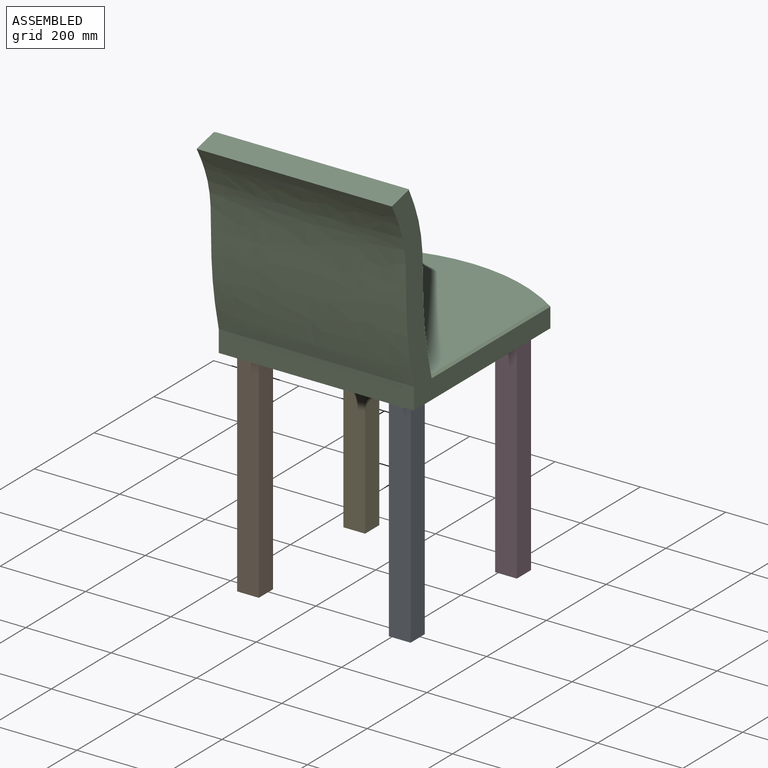
[diagram: assembled view]
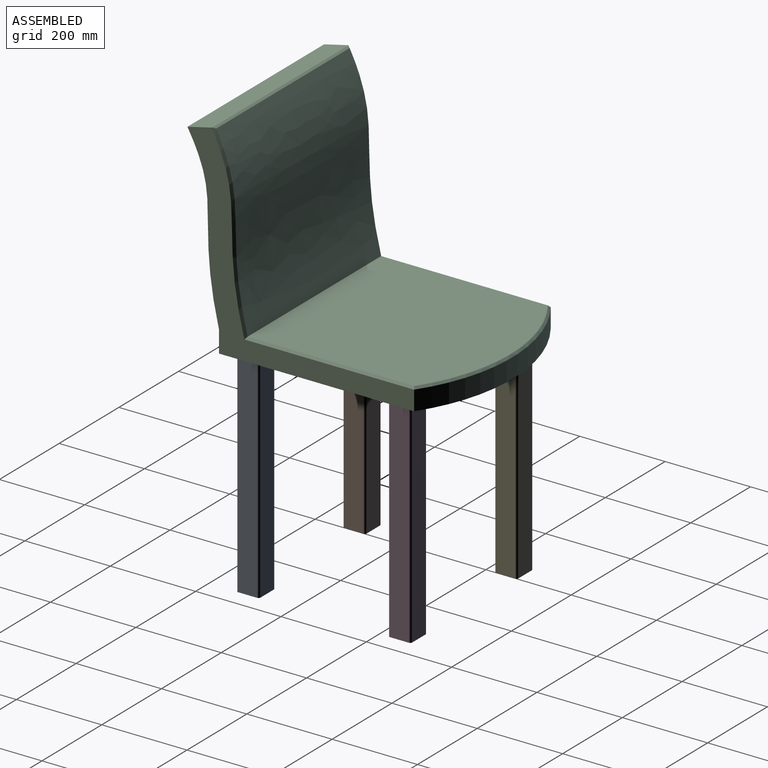
[diagram: assembled view, second angle]
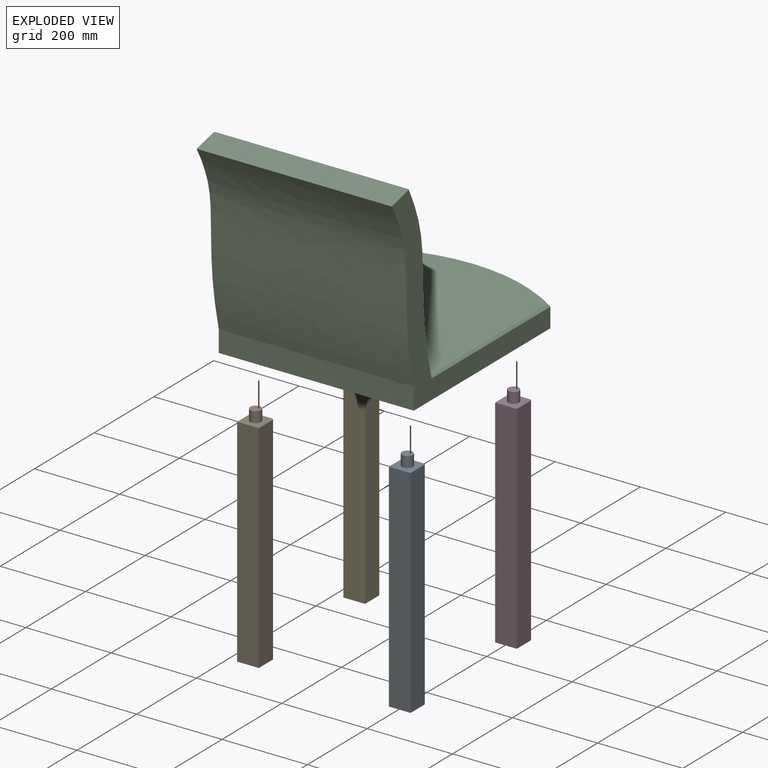
[diagram: exploded view]
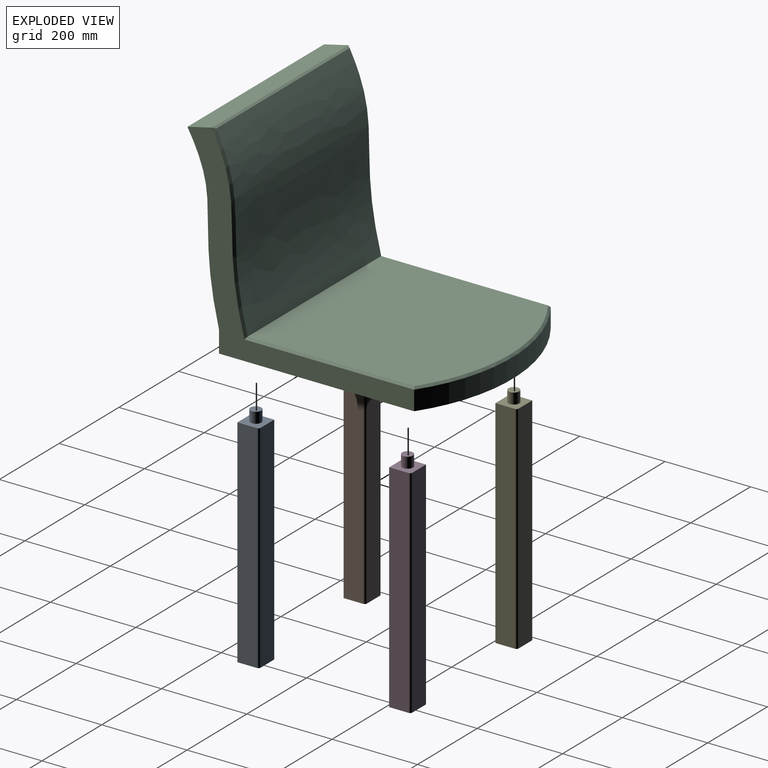
[diagram: exploded view, second angle]
ASSEMBLY  parts=5 mates=4
PART A: 9 faces, bbox 50.8x50.8x533.4 mm
  f0: plane 508x50.8mm, normal (0,-1,0), area 25806.4mm2, adj f1,f3,f4,f5
  f1: plane 508x50.8mm, normal (-1,0,0), area 25806.4mm2, adj f0,f2,f4,f5
  f2: plane 508x45.72mm, normal (0,1,0), area 23225.8mm2, adj f1,f4,f5,f8
  f3: plane 508x45.72mm, normal (1,0,0), area 23225.8mm2, adj f0,f4,f5,f8
  f4: plane 50.8x50.8mm, normal (0,0,-1), area 2575.1mm2, adj f0,f1,f2,f3,f8
  f5: plane 50.8x50.8mm, normal (0,0,1), area 2068.4mm2, adj f0,f1,f2,f3,f6,f8
  f6: cylinder r=12.7mm len=25.4mm, axis (0,0,-1), area 2026.8mm2, adj f5,f7
  f7: plane 25.4x25.4mm, normal (0,0,1), area 506.7mm2, adj f6
  f8: cylinder r=5.08mm len=508mm, axis (0,0,-1), area 4053.7mm2, adj f2,f3,f4,f5
PART B: same geometry as A
PART C: 23 faces, bbox 457.2x601.5x486.9 mm
  f0: plane 527.59x457.2mm, normal (0,0,-1), area 228861.2mm2, adj f1,f2,f3,f4,f6,f8,f10,f12
  f1: plane 531.1x474.01mm, normal (1,0,0), area 44514.5mm2, adj f0,f2,f4,f14,f16,f17,f19
  f2: cylinder r=406.4mm len=457.2mm, axis (0,0,-1), area 22200.3mm2, adj f0,f1,f3,f18
  f3: plane 531.1x474.01mm, normal (-1,0,0), area 45344.1mm2, adj f0,f2,f4,f14,f16,f20,f22
  f4: plane 457.2x50.8mm, normal (0,-1,0), area 23225.8mm2, adj f0,f1,f3,f16
  f5: plane 459.01x447.04mm, normal (0,0,1), area 195431.8mm2, adj f15,f17,f18,f20
  f6: cylinder r=12.7mm len=25.4mm, axis (0,0,-1), area 2026.8mm2, adj f0,f7
  f7: plane 25.4x25.4mm, normal (0,0,-1), area 506.7mm2, adj f6
  f8: cylinder r=12.7mm len=25.4mm, axis (0,0,-1), area 2026.8mm2, adj f0,f9
  f9: plane 25.4x25.4mm, normal (0,0,-1), area 506.7mm2, adj f8
  f10: cylinder r=12.7mm len=25.4mm, axis (0,0,-1), area 2026.8mm2, adj f0,f11
  f11: plane 25.4x25.4mm, normal (0,0,-1), area 506.7mm2, adj f10
  f12: cylinder r=12.7mm len=25.4mm, axis (0,0,-1), area 2026.8mm2, adj f0,f13
  f13: plane 25.4x25.4mm, normal (0,0,-1), area 506.7mm2, adj f12
  f14: plane 457.2x57.97mm, normal (0,-0.23,0.97), area 27230.1mm2, adj f1,f3,f16,f19,f21,f22
  f15: bspline ~457.2x424.41mm, area 192688.9mm2, adj f5,f19,f21,f22
  f16: bspline ~457.2x409.81mm, area 192458.3mm2, adj f1,f3,f4,f14
  f17: plane 397.64x5.09mm, normal (0.71,0,0.71), area 2832.8mm2, adj f1,f5,f18,f19
  f18: cone r=401.32mm half-angle=45deg, axis (0,0,-1), area 3447.3mm2, adj f2,f5,f17,f20
  f19: bspline ~452.65x90.23mm, area 3129.1mm2, adj f1,f14,f15,f17,f21
  f20: plane 397.64x5.09mm, normal (-0.71,0,0.71), area 2832.8mm2, adj f3,f5,f18,f22
  f21: plane 454.68x5.69mm, normal (0,0.42,0.91), area 2812.3mm2, adj f14,f15,f19,f22
  f22: bspline ~452.68x90.25mm, area 3123.4mm2, adj f3,f14,f15,f20,f21
PART D: same geometry as A
PART E: same geometry as A
PLACE A t=(647.25,-123.4,-203.52)mm
PLACE B t=(291.65,-123.4,-203.52)mm
PLACE C t=(647.25,-123.4,-203.52)mm
PLACE D t=(647.25,232.2,-203.52)mm
PLACE E t=(291.65,232.2,-203.52)mm
MATE fastened C.f10 <-> E.f6  axis (0,0,-1) through (469.45,54.4,-178.12)mm
MATE fastened C.f6 <-> A.f6  axis (0,0,-1) through (825.05,-301.2,-178.12)mm
MATE fastened C.f8 <-> D.f6  axis (0,0,-1) through (825.05,54.4,-178.12)mm
MATE fastened C.f12 <-> B.f6  axis (0,0,-1) through (469.45,-301.2,-178.12)mm
